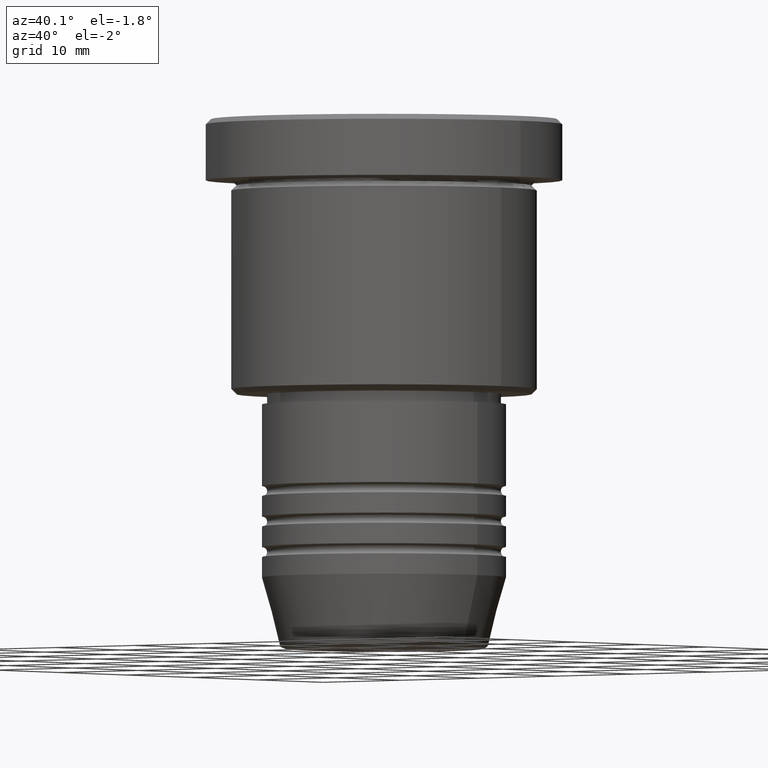
[diagram: clean part render]
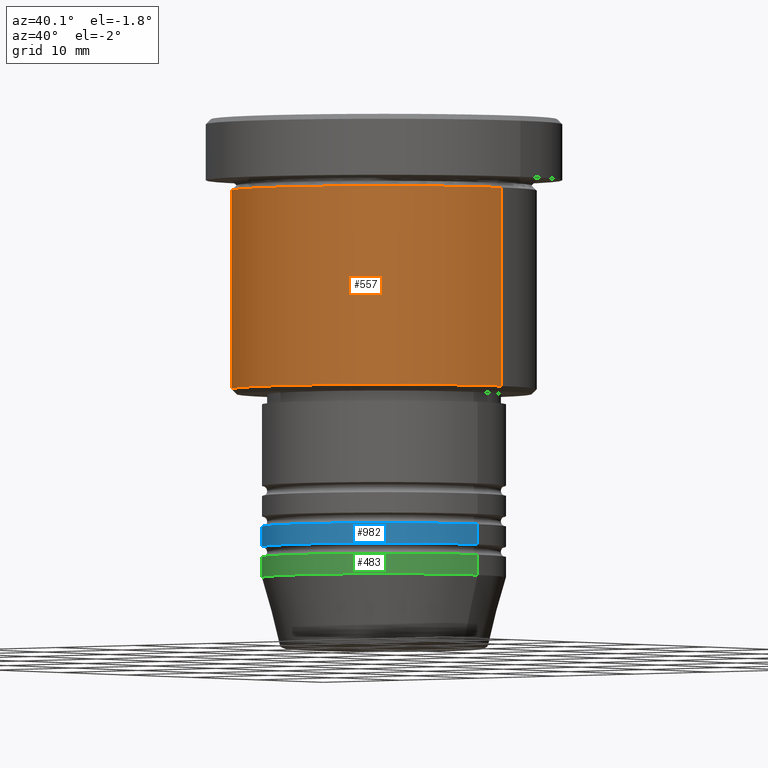
[diagram: same view with three faces highlighted in distinct colors, each labeled with its STEP entity id]
A machine part, auxiliary view with three faces highlighted in distinct colors.
Their STEP definitions:

[orange] entity #557 — the highlighted cylindrical surface (partial cylindrical patch) has radius 15 mm, axis along (-0, -0, 1).
#82 = DIRECTION ( 'NONE',  ( 1.000000000000000000, 0.000000000000000000, 0.000000000000000000 ) ) ;
#95 = CIRCLE ( 'NONE', #1180, 15.00000000000000000 ) ;
#98 = CARTESIAN_POINT ( 'NONE',  ( 15.00000000000000000, 0.000000000000000000, 0.000000000000000000 ) ) ;
#154 = FACE_OUTER_BOUND ( 'NONE', #464, .T. ) ;
#162 = CARTESIAN_POINT ( 'NONE',  ( -15.00000000000000000, 1.836970198721029589E-15, 0.000000000000000000 ) ) ;
#166 = ORIENTED_EDGE ( 'NONE', *, *, #944, .F. ) ;
#221 = DIRECTION ( 'NONE',  ( 1.000000000000000000, 0.000000000000000000, 0.000000000000000000 ) ) ;
#237 = CARTESIAN_POINT ( 'NONE',  ( 0.000000000000000000, 0.000000000000000000, 0.000000000000000000 ) ) ;
#317 = DIRECTION ( 'NONE',  ( -0.000000000000000000, -0.000000000000000000, 1.000000000000000000 ) ) ;
#353 = DIRECTION ( 'NONE',  ( -0.000000000000000000, -0.000000000000000000, 1.000000000000000000 ) ) ;
#358 = CYLINDRICAL_SURFACE ( 'NONE', #968, 15.00000000000000000 ) ;
#379 = VERTEX_POINT ( 'NONE', #682 ) ;
#414 = VERTEX_POINT ( 'NONE', #1038 ) ;
#458 = AXIS2_PLACEMENT_3D ( 'NONE', #1167, #353, #712 ) ;
#464 = EDGE_LOOP ( 'NONE', ( #934, #559, #966, #166 ) ) ;
#521 = VERTEX_POINT ( 'NONE', #1056 ) ;
#528 = DIRECTION ( 'NONE',  ( -0.000000000000000000, -0.000000000000000000, 1.000000000000000000 ) ) ;
#536 = DIRECTION ( 'NONE',  ( -0.000000000000000000, -0.000000000000000000, 1.000000000000000000 ) ) ;
#557 = ADVANCED_FACE ( 'NONE', ( #154 ), #358, .T. ) ;
#559 = ORIENTED_EDGE ( 'NONE', *, *, #645, .T. ) ;
#621 = CIRCLE ( 'NONE', #458, 15.00000000000000000 ) ;
#634 = EDGE_CURVE ( 'NONE', #379, #521, #981, .T. ) ;
#645 = EDGE_CURVE ( 'NONE', #379, #414, #621, .T. ) ;
#682 = CARTESIAN_POINT ( 'NONE',  ( -15.00000000000000000, 1.836970198721029589E-15, -26.49999999999998579 ) ) ;
#712 = DIRECTION ( 'NONE',  ( -1.000000000000000000, 0.000000000000000000, 0.000000000000000000 ) ) ;
#760 = CARTESIAN_POINT ( 'NONE',  ( 0.000000000000000000, 0.000000000000000000, -6.999999999999995559 ) ) ;
#809 = DIRECTION ( 'NONE',  ( -0.000000000000000000, -0.000000000000000000, 1.000000000000000000 ) ) ;
#825 = LINE ( 'NONE', #98, #1102 ) ;
#934 = ORIENTED_EDGE ( 'NONE', *, *, #634, .F. ) ;
#944 = EDGE_CURVE ( 'NONE', #521, #1085, #95, .T. ) ;
#966 = ORIENTED_EDGE ( 'NONE', *, *, #1143, .T. ) ;
#968 = AXIS2_PLACEMENT_3D ( 'NONE', #237, #536, #82 ) ;
#981 = LINE ( 'NONE', #162, #1100 ) ;
#1038 = CARTESIAN_POINT ( 'NONE',  ( 15.00000000000000000, 0.000000000000000000, -26.49999999999998579 ) ) ;
#1050 = CARTESIAN_POINT ( 'NONE',  ( 15.00000000000000000, 0.000000000000000000, -6.999999999999995559 ) ) ;
#1056 = CARTESIAN_POINT ( 'NONE',  ( -15.00000000000000000, 1.836970198721029589E-15, -6.999999999999995559 ) ) ;
#1085 = VERTEX_POINT ( 'NONE', #1050 ) ;
#1100 = VECTOR ( 'NONE', #528, 1000.000000000000000 ) ;
#1102 = VECTOR ( 'NONE', #809, 1000.000000000000000 ) ;
#1143 = EDGE_CURVE ( 'NONE', #414, #1085, #825, .T. ) ;
#1167 = CARTESIAN_POINT ( 'NONE',  ( 0.000000000000000000, 0.000000000000000000, -26.49999999999998579 ) ) ;
#1180 = AXIS2_PLACEMENT_3D ( 'NONE', #760, #317, #221 ) ;

[blue] entity #982 — the highlighted cylindrical surface (partial cylindrical patch) has radius 12 mm, axis along (-0, -0, 1).
#73 = DIRECTION ( 'NONE',  ( -0.000000000000000000, -0.000000000000000000, 1.000000000000000000 ) ) ;
#93 = AXIS2_PLACEMENT_3D ( 'NONE', #553, #103, #831 ) ;
#103 = DIRECTION ( 'NONE',  ( -0.000000000000000000, -0.000000000000000000, 1.000000000000000000 ) ) ;
#160 = VERTEX_POINT ( 'NONE', #592 ) ;
#168 = VECTOR ( 'NONE', #869, 1000.000000000000000 ) ;
#209 = EDGE_LOOP ( 'NONE', ( #362, #674, #1067, #1103 ) ) ;
#278 = VERTEX_POINT ( 'NONE', #463 ) ;
#304 = CIRCLE ( 'NONE', #93, 12.00000000000000000 ) ;
#335 = CARTESIAN_POINT ( 'NONE',  ( 0.000000000000000000, 0.000000000000000000, 0.000000000000000000 ) ) ;
#362 = ORIENTED_EDGE ( 'NONE', *, *, #462, .F. ) ;
#416 = CARTESIAN_POINT ( 'NONE',  ( -12.00000000000000000, 1.469576158976823947E-15, 0.000000000000000000 ) ) ;
#420 = CARTESIAN_POINT ( 'NONE',  ( 0.000000000000000000, 0.000000000000000000, -41.99999999999997868 ) ) ;
#462 = EDGE_CURVE ( 'NONE', #898, #278, #507, .T. ) ;
#463 = CARTESIAN_POINT ( 'NONE',  ( -12.00000000000000000, 1.469576158976823947E-15, -39.99999999999997868 ) ) ;
#467 = EDGE_CURVE ( 'NONE', #898, #534, #477, .T. ) ;
#477 = CIRCLE ( 'NONE', #834, 12.00000000000000000 ) ;
#507 = LINE ( 'NONE', #416, #168 ) ;
#534 = VERTEX_POINT ( 'NONE', #602 ) ;
#553 = CARTESIAN_POINT ( 'NONE',  ( 0.000000000000000000, 0.000000000000000000, -39.99999999999997868 ) ) ;
#592 = CARTESIAN_POINT ( 'NONE',  ( 12.00000000000000000, 0.000000000000000000, -39.99999999999997868 ) ) ;
#602 = CARTESIAN_POINT ( 'NONE',  ( 12.00000000000000000, 0.000000000000000000, -41.99999999999997868 ) ) ;
#674 = ORIENTED_EDGE ( 'NONE', *, *, #467, .T. ) ;
#683 = AXIS2_PLACEMENT_3D ( 'NONE', #335, #73, #881 ) ;
#704 = CYLINDRICAL_SURFACE ( 'NONE', #683, 12.00000000000000000 ) ;
#737 = EDGE_CURVE ( 'NONE', #278, #160, #304, .T. ) ;
#765 = EDGE_CURVE ( 'NONE', #534, #160, #903, .T. ) ;
#776 = DIRECTION ( 'NONE',  ( -0.000000000000000000, -0.000000000000000000, 1.000000000000000000 ) ) ;
#811 = DIRECTION ( 'NONE',  ( -0.000000000000000000, -0.000000000000000000, 1.000000000000000000 ) ) ;
#831 = DIRECTION ( 'NONE',  ( 1.000000000000000000, 0.000000000000000000, 0.000000000000000000 ) ) ;
#834 = AXIS2_PLACEMENT_3D ( 'NONE', #420, #776, #1027 ) ;
#869 = DIRECTION ( 'NONE',  ( -0.000000000000000000, -0.000000000000000000, 1.000000000000000000 ) ) ;
#881 = DIRECTION ( 'NONE',  ( 1.000000000000000000, 0.000000000000000000, 0.000000000000000000 ) ) ;
#898 = VERTEX_POINT ( 'NONE', #943 ) ;
#903 = LINE ( 'NONE', #1013, #1063 ) ;
#943 = CARTESIAN_POINT ( 'NONE',  ( -12.00000000000000000, 1.469576158976823947E-15, -41.99999999999997868 ) ) ;
#982 = ADVANCED_FACE ( 'NONE', ( #1153 ), #704, .T. ) ;
#1013 = CARTESIAN_POINT ( 'NONE',  ( 12.00000000000000000, 0.000000000000000000, 0.000000000000000000 ) ) ;
#1027 = DIRECTION ( 'NONE',  ( 1.000000000000000000, 0.000000000000000000, 0.000000000000000000 ) ) ;
#1063 = VECTOR ( 'NONE', #811, 1000.000000000000000 ) ;
#1067 = ORIENTED_EDGE ( 'NONE', *, *, #765, .T. ) ;
#1103 = ORIENTED_EDGE ( 'NONE', *, *, #737, .F. ) ;
#1153 = FACE_OUTER_BOUND ( 'NONE', #209, .T. ) ;

[green] entity #483 — the highlighted cylindrical surface (partial cylindrical patch) has radius 12 mm, axis along (-0, -0, 1).
#125 = LINE ( 'NONE', #589, #205 ) ;
#151 = EDGE_LOOP ( 'NONE', ( #862, #1011, #253, #746 ) ) ;
#193 = EDGE_CURVE ( 'NONE', #1146, #321, #421, .T. ) ;
#205 = VECTOR ( 'NONE', #493, 1000.000000000000000 ) ;
#207 = VERTEX_POINT ( 'NONE', #1076 ) ;
#241 = DIRECTION ( 'NONE',  ( -0.000000000000000000, -0.000000000000000000, 1.000000000000000000 ) ) ;
#253 = ORIENTED_EDGE ( 'NONE', *, *, #591, .T. ) ;
#289 = AXIS2_PLACEMENT_3D ( 'NONE', #1055, #241, #600 ) ;
#318 = FACE_OUTER_BOUND ( 'NONE', #151, .T. ) ;
#321 = VERTEX_POINT ( 'NONE', #1071 ) ;
#332 = CYLINDRICAL_SURFACE ( 'NONE', #1022, 12.00000000000000000 ) ;
#338 = DIRECTION ( 'NONE',  ( -0.000000000000000000, -0.000000000000000000, 1.000000000000000000 ) ) ;
#345 = CIRCLE ( 'NONE', #289, 12.00000000000000000 ) ;
#421 = CIRCLE ( 'NONE', #813, 12.00000000000000000 ) ;
#429 = CARTESIAN_POINT ( 'NONE',  ( 0.000000000000000000, 0.000000000000000000, -45.00000000000000000 ) ) ;
#483 = ADVANCED_FACE ( 'NONE', ( #318 ), #332, .T. ) ;
#493 = DIRECTION ( 'NONE',  ( -0.000000000000000000, -0.000000000000000000, 1.000000000000000000 ) ) ;
#589 = CARTESIAN_POINT ( 'NONE',  ( -12.00000000000000000, 1.469576158976823947E-15, 0.000000000000000000 ) ) ;
#591 = EDGE_CURVE ( 'NONE', #321, #207, #961, .T. ) ;
#595 = CARTESIAN_POINT ( 'NONE',  ( 12.00000000000000000, 0.000000000000000000, 0.000000000000000000 ) ) ;
#600 = DIRECTION ( 'NONE',  ( 1.000000000000000000, 0.000000000000000000, 0.000000000000000000 ) ) ;
#647 = CARTESIAN_POINT ( 'NONE',  ( -12.00000000000000000, 1.469576158976823947E-15, -45.00000000000000000 ) ) ;
#693 = DIRECTION ( 'NONE',  ( 1.000000000000000000, 0.000000000000000000, 0.000000000000000000 ) ) ;
#744 = VERTEX_POINT ( 'NONE', #1097 ) ;
#746 = ORIENTED_EDGE ( 'NONE', *, *, #1094, .F. ) ;
#755 = DIRECTION ( 'NONE',  ( -0.000000000000000000, -0.000000000000000000, 1.000000000000000000 ) ) ;
#813 = AXIS2_PLACEMENT_3D ( 'NONE', #429, #338, #693 ) ;
#862 = ORIENTED_EDGE ( 'NONE', *, *, #901, .F. ) ;
#901 = EDGE_CURVE ( 'NONE', #1146, #744, #125, .T. ) ;
#961 = LINE ( 'NONE', #595, #1176 ) ;
#976 = DIRECTION ( 'NONE',  ( -0.000000000000000000, -0.000000000000000000, 1.000000000000000000 ) ) ;
#1011 = ORIENTED_EDGE ( 'NONE', *, *, #193, .T. ) ;
#1022 = AXIS2_PLACEMENT_3D ( 'NONE', #1122, #755, #1033 ) ;
#1033 = DIRECTION ( 'NONE',  ( 1.000000000000000000, 0.000000000000000000, 0.000000000000000000 ) ) ;
#1055 = CARTESIAN_POINT ( 'NONE',  ( 0.000000000000000000, 0.000000000000000000, -43.00000000000000000 ) ) ;
#1071 = CARTESIAN_POINT ( 'NONE',  ( 12.00000000000000000, 0.000000000000000000, -45.00000000000000000 ) ) ;
#1076 = CARTESIAN_POINT ( 'NONE',  ( 12.00000000000000000, 0.000000000000000000, -43.00000000000000000 ) ) ;
#1094 = EDGE_CURVE ( 'NONE', #744, #207, #345, .T. ) ;
#1097 = CARTESIAN_POINT ( 'NONE',  ( -12.00000000000000000, 1.469576158976823947E-15, -43.00000000000000000 ) ) ;
#1122 = CARTESIAN_POINT ( 'NONE',  ( 0.000000000000000000, 0.000000000000000000, 0.000000000000000000 ) ) ;
#1146 = VERTEX_POINT ( 'NONE', #647 ) ;
#1176 = VECTOR ( 'NONE', #976, 1000.000000000000000 ) ;